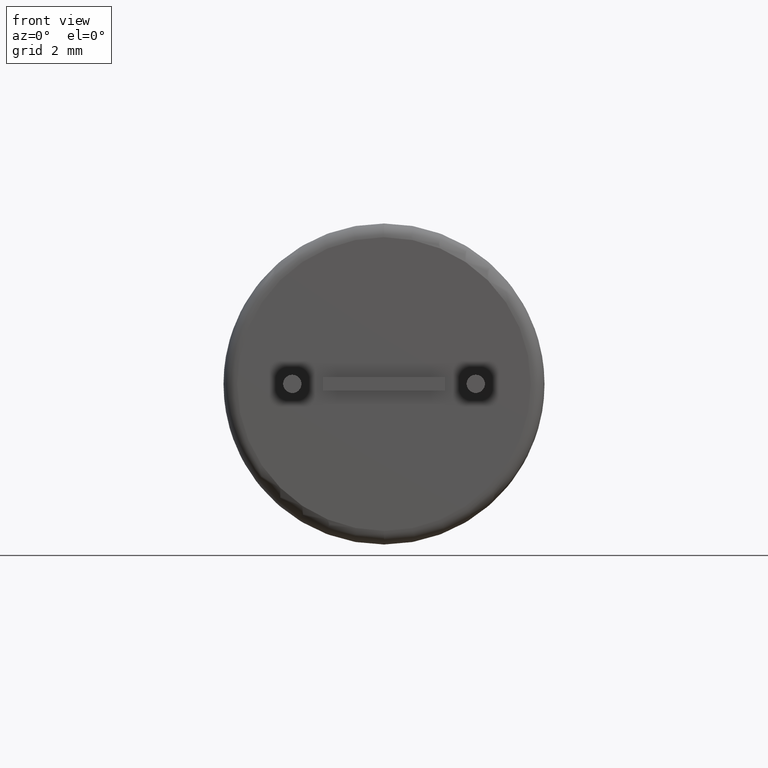
[diagram: clean part render]
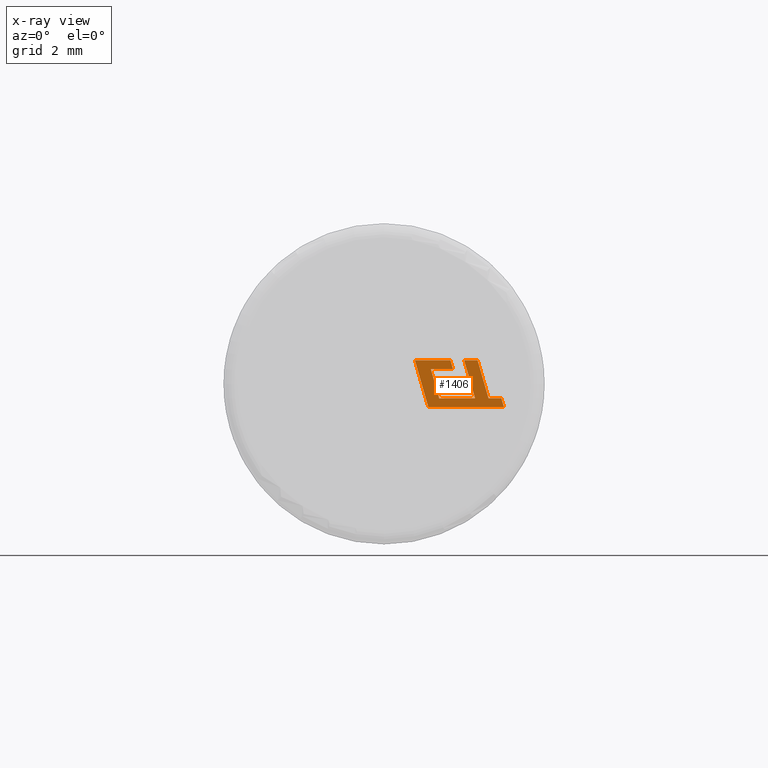
[diagram: x-ray — body ghosted, one internal face saturated and labeled with its STEP entity id]
A machine part, front view, then the same camera in x-ray: the body is ghosted and one INTERNAL B-rep face — a face not visible from any outside direction — is saturated and labeled: STEP entity #1406.
In plain terms, the highlighted planar face has unit normal (0, 1, 0).
Its self-contained STEP definition (entity closure, byte-faithful):
#45 = VERTEX_POINT ( 'NONE', #2183 ) ;
#59 = DIRECTION ( 'NONE',  ( 0.0000000000000000000, 1.000000000000000000, 0.0000000000000000000 ) ) ;
#82 = ORIENTED_EDGE ( 'NONE', *, *, #2175, .F. ) ;
#87 = VECTOR ( 'NONE', #1355, 1000.000000000000000 ) ;
#140 = DIRECTION ( 'NONE',  ( 0.2745159998572685400, 0.0000000000000000000, -0.9615825319869137900 ) ) ;
#150 = CARTESIAN_POINT ( 'NONE',  ( 1.020782921526899100, 7.764800000000000100, 0.3205885588268876400 ) ) ;
#153 = EDGE_CURVE ( 'NONE', #650, #704, #770, .T. ) ;
#160 = FACE_OUTER_BOUND ( 'NONE', #1983, .T. ) ;
#173 = EDGE_CURVE ( 'NONE', #1018, #268, #523, .T. ) ;
#198 = DIRECTION ( 'NONE',  ( 1.000000000000000000, 0.0000000000000000000, 0.0000000000000000000 ) ) ;
#210 = VECTOR ( 'NONE', #231, 1000.000000000000000 ) ;
#231 = DIRECTION ( 'NONE',  ( 1.000000000000000000, 0.0000000000000000000, 0.0000000000000000000 ) ) ;
#268 = VERTEX_POINT ( 'NONE', #2508 ) ;
#294 = CARTESIAN_POINT ( 'NONE',  ( 1.534013027644680600, 7.764800000000000100, 0.06552458732921501200 ) ) ;
#315 = VECTOR ( 'NONE', #630, 1000.000000000000100 ) ;
#331 = LINE ( 'NONE', #2719, #2924 ) ;
#347 = DIRECTION ( 'NONE',  ( 0.2729786930694320700, 0.0000000000000000000, -0.9620200793798977500 ) ) ;
#383 = EDGE_CURVE ( 'NONE', #2893, #650, #728, .T. ) ;
#384 = DIRECTION ( 'NONE',  ( -1.000000000000000000, 0.0000000000000000000, 2.141994324563337000E-016 ) ) ;
#394 = VERTEX_POINT ( 'NONE', #1745 ) ;
#444 = CARTESIAN_POINT ( 'NONE',  ( 2.559015337177406900, 7.764800000000000100, -0.3123021888325555600 ) ) ;
#523 = LINE ( 'NONE', #1351, #2670 ) ;
#540 = EDGE_CURVE ( 'NONE', #268, #1417, #2139, .T. ) ;
#567 = EDGE_CURVE ( 'NONE', #1573, #45, #2947, .T. ) ;
#630 = DIRECTION ( 'NONE',  ( 0.2793947940814905900, 0.0000000000000000000, -0.9601763114346038000 ) ) ;
#634 = LINE ( 'NONE', #294, #2157 ) ;
#641 = LINE ( 'NONE', #2380, #2869 ) ;
#650 = VERTEX_POINT ( 'NONE', #444 ) ;
#667 = DIRECTION ( 'NONE',  ( 0.9999960426590096500, 0.0000000000000000000, 0.002813301676022459200 ) ) ;
#677 = DIRECTION ( 'NONE',  ( -1.000000000000000000, 0.0000000000000000000, 3.132732591391179300E-016 ) ) ;
#678 = ORIENTED_EDGE ( 'NONE', *, *, #1905, .F. ) ;
#692 = DIRECTION ( 'NONE',  ( 0.2746918797667241000, 0.0000000000000000000, -0.9615323037684295700 ) ) ;
#704 = VERTEX_POINT ( 'NONE', #2054 ) ;
#708 = LINE ( 'NONE', #2235, #2468 ) ;
#728 = LINE ( 'NONE', #1211, #2599 ) ;
#734 = EDGE_CURVE ( 'NONE', #2605, #1528, #1814, .T. ) ;
#768 = CARTESIAN_POINT ( 'NONE',  ( 2.039940254781940100, 7.764800000000000100, 0.5159000000000316700 ) ) ;
#770 = LINE ( 'NONE', #2944, #1741 ) ;
#793 = DIRECTION ( 'NONE',  ( 0.9999891854650020400, 0.0000000000000000000, 0.004650693823677738000 ) ) ;
#799 = EDGE_CURVE ( 'NONE', #394, #1242, #1879, .T. ) ;
#852 = EDGE_CURVE ( 'NONE', #2286, #2584, #2870, .T. ) ;
#856 = CARTESIAN_POINT ( 'NONE',  ( 1.985680488135802800, 7.764800000000000100, -0.3123244985796048100 ) ) ;
#927 = ORIENTED_EDGE ( 'NONE', *, *, #2455, .F. ) ;
#1014 = EDGE_CURVE ( 'NONE', #704, #1573, #641, .T. ) ;
#1016 = CARTESIAN_POINT ( 'NONE',  ( 1.448519409359427100, 7.764800000000000100, 0.5159000000000316700 ) ) ;
#1018 = VERTEX_POINT ( 'NONE', #2657 ) ;
#1062 = CARTESIAN_POINT ( 'NONE',  ( 0.9682708532386388200, 7.764800000000000100, -0.5105040362432053900 ) ) ;
#1081 = CARTESIAN_POINT ( 'NONE',  ( 1.503940146510068400, 7.764800000000000100, 0.3205885588268875800 ) ) ;
#1093 = CARTESIAN_POINT ( 'NONE',  ( 2.277995384209543900, 7.764800000000000100, -0.3123244985770398100 ) ) ;
#1098 = DIRECTION ( 'NONE',  ( 0.2762033010290285700, 0.0000000000000000000, -0.9610992334304860900 ) ) ;
#1122 = CARTESIAN_POINT ( 'NONE',  ( 1.093599490915455600, 7.764800000000000100, 0.06552458732921517800 ) ) ;
#1167 = CARTESIAN_POINT ( 'NONE',  ( 0.9682708532386388200, 7.764800000000000100, -0.5105040362432053900 ) ) ;
#1173 = ORIENTED_EDGE ( 'NONE', *, *, #540, .F. ) ;
#1188 = VECTOR ( 'NONE', #384, 1000.000000000000000 ) ;
#1201 = CARTESIAN_POINT ( 'NONE',  ( -0.06910119385010503300, 7.764800000000000100, 0.05240583738103321600 ) ) ;
#1211 = CARTESIAN_POINT ( 'NONE',  ( 2.277995384209543900, 7.764800000000000100, -0.3123244985770398100 ) ) ;
#1215 = LINE ( 'NONE', #2892, #2180 ) ;
#1242 = VERTEX_POINT ( 'NONE', #2302 ) ;
#1262 = CARTESIAN_POINT ( 'NONE',  ( 0.6730410465249611100, 7.764800000000000100, 0.5159000000000316700 ) ) ;
#1333 = ORIENTED_EDGE ( 'NONE', *, *, #2914, .F. ) ;
#1346 = LINE ( 'NONE', #1016, #2296 ) ;
#1351 = CARTESIAN_POINT ( 'NONE',  ( 1.588210376521853200, 7.764800000000000100, -0.1241879799598679100 ) ) ;
#1355 = DIRECTION ( 'NONE',  ( 1.000000000000000000, 0.0000000000000000000, -2.447794202390573100E-016 ) ) ;
#1365 = AXIS2_PLACEMENT_3D ( 'NONE', #1201, #59, #2785 ) ;
#1398 = ORIENTED_EDGE ( 'NONE', *, *, #1716, .F. ) ;
#1406 = ADVANCED_FACE ( 'NONE', ( #160 ), #2121, .F. ) ;
#1417 = VERTEX_POINT ( 'NONE', #1656 ) ;
#1423 = LINE ( 'NONE', #1262, #210 ) ;
#1455 = DIRECTION ( 'NONE',  ( 0.2762437428917126100, 0.0000000000000000000, -0.9610876102172877200 ) ) ;
#1461 = ORIENTED_EDGE ( 'NONE', *, *, #2496, .F. ) ;
#1470 = ORIENTED_EDGE ( 'NONE', *, *, #734, .F. ) ;
#1528 = VERTEX_POINT ( 'NONE', #2261 ) ;
#1573 = VERTEX_POINT ( 'NONE', #1167 ) ;
#1576 = VERTEX_POINT ( 'NONE', #2621 ) ;
#1656 = CARTESIAN_POINT ( 'NONE',  ( 1.203286236489359700, 7.764800000000000100, -0.3150989684148586800 ) ) ;
#1714 = ORIENTED_EDGE ( 'NONE', *, *, #383, .F. ) ;
#1716 = EDGE_CURVE ( 'NONE', #2584, #1018, #634, .T. ) ;
#1722 = LINE ( 'NONE', #768, #2510 ) ;
#1741 = VECTOR ( 'NONE', #1098, 1000.000000000000100 ) ;
#1745 = CARTESIAN_POINT ( 'NONE',  ( 1.503940146510068400, 7.764800000000000100, 0.3205885588268875800 ) ) ;
#1762 = VERTEX_POINT ( 'NONE', #2539 ) ;
#1814 = LINE ( 'NONE', #856, #1943 ) ;
#1879 = LINE ( 'NONE', #1081, #1188 ) ;
#1886 = EDGE_CURVE ( 'NONE', #1576, #2893, #1722, .T. ) ;
#1905 = EDGE_CURVE ( 'NONE', #1762, #2605, #1215, .T. ) ;
#1914 = CARTESIAN_POINT ( 'NONE',  ( 1.448519409359427100, 7.764800000000000100, 0.5159000000000316700 ) ) ;
#1943 = VECTOR ( 'NONE', #2217, 1000.000000000000000 ) ;
#1983 = EDGE_LOOP ( 'NONE', ( #82, #1173, #2003, #1398, #2383, #1333, #2102, #2477, #1461, #2772, #2297, #2839, #1714, #2683, #927, #1470, #678 ) ) ;
#2003 = ORIENTED_EDGE ( 'NONE', *, *, #173, .F. ) ;
#2013 = EDGE_CURVE ( 'NONE', #2737, #394, #1346, .T. ) ;
#2033 = CARTESIAN_POINT ( 'NONE',  ( 1.093599490915455600, 7.764800000000000100, 0.06552458732921517800 ) ) ;
#2047 = LINE ( 'NONE', #150, #2736 ) ;
#2054 = CARTESIAN_POINT ( 'NONE',  ( 2.615975120954857800, 7.764800000000000100, -0.5105040362432056200 ) ) ;
#2102 = ORIENTED_EDGE ( 'NONE', *, *, #799, .F. ) ;
#2121 = PLANE ( 'NONE',  #1365 ) ;
#2139 = LINE ( 'NONE', #2899, #315 ) ;
#2157 = VECTOR ( 'NONE', #692, 1000.000000000000200 ) ;
#2175 = EDGE_CURVE ( 'NONE', #1417, #1762, #708, .T. ) ;
#2180 = VECTOR ( 'NONE', #793, 1000.000000000000200 ) ;
#2183 = CARTESIAN_POINT ( 'NONE',  ( 0.6730410465249611100, 7.764800000000000100, 0.5159000000000316700 ) ) ;
#2217 = DIRECTION ( 'NONE',  ( -0.2763173343569531000, 0.0000000000000000000, 0.9610664548999032800 ) ) ;
#2235 = CARTESIAN_POINT ( 'NONE',  ( 1.203286236489359700, 7.764800000000000100, -0.3150989684148586800 ) ) ;
#2261 = CARTESIAN_POINT ( 'NONE',  ( 1.747556699161725100, 7.764800000000000100, 0.5159000000000316700 ) ) ;
#2286 = VERTEX_POINT ( 'NONE', #1122 ) ;
#2296 = VECTOR ( 'NONE', #347, 1000.000000000000100 ) ;
#2297 = ORIENTED_EDGE ( 'NONE', *, *, #1014, .F. ) ;
#2302 = CARTESIAN_POINT ( 'NONE',  ( 1.020782921526899100, 7.764800000000000100, 0.3205885588268876400 ) ) ;
#2380 = CARTESIAN_POINT ( 'NONE',  ( 1.730229527294165700, 7.764800000000000100, -0.5105040362432056200 ) ) ;
#2383 = ORIENTED_EDGE ( 'NONE', *, *, #852, .F. ) ;
#2447 = VECTOR ( 'NONE', #2708, 1000.000000000000100 ) ;
#2455 = EDGE_CURVE ( 'NONE', #1528, #1576, #331, .T. ) ;
#2468 = VECTOR ( 'NONE', #667, 999.9999999999998900 ) ;
#2477 = ORIENTED_EDGE ( 'NONE', *, *, #2013, .F. ) ;
#2496 = EDGE_CURVE ( 'NONE', #45, #2737, #1423, .T. ) ;
#2508 = CARTESIAN_POINT ( 'NONE',  ( 1.147734422023554600, 7.764800000000000100, -0.1241879799598678000 ) ) ;
#2510 = VECTOR ( 'NONE', #1455, 1000.000000000000100 ) ;
#2539 = CARTESIAN_POINT ( 'NONE',  ( 1.673641577038208000, 7.764800000000000100, -0.3137757117103885900 ) ) ;
#2584 = VERTEX_POINT ( 'NONE', #2818 ) ;
#2599 = VECTOR ( 'NONE', #2819, 1000.000000000000100 ) ;
#2605 = VERTEX_POINT ( 'NONE', #2677 ) ;
#2610 = DIRECTION ( 'NONE',  ( -1.000000000000000000, 0.0000000000000000000, 9.054909572959333200E-017 ) ) ;
#2621 = CARTESIAN_POINT ( 'NONE',  ( 2.039940254781940100, 7.764800000000000100, 0.5159000000000316700 ) ) ;
#2657 = CARTESIAN_POINT ( 'NONE',  ( 1.588210376521853200, 7.764800000000000100, -0.1241879799598679100 ) ) ;
#2670 = VECTOR ( 'NONE', #677, 1000.000000000000000 ) ;
#2677 = CARTESIAN_POINT ( 'NONE',  ( 1.985680488135802800, 7.764800000000000100, -0.3123244985796048100 ) ) ;
#2683 = ORIENTED_EDGE ( 'NONE', *, *, #1886, .F. ) ;
#2708 = DIRECTION ( 'NONE',  ( -0.2764273280489770200, 0.0000000000000000000, 0.9610348236706634000 ) ) ;
#2719 = CARTESIAN_POINT ( 'NONE',  ( 1.747556699161725100, 7.764800000000000100, 0.5159000000000316700 ) ) ;
#2736 = VECTOR ( 'NONE', #140, 1000.000000000000100 ) ;
#2737 = VERTEX_POINT ( 'NONE', #1914 ) ;
#2772 = ORIENTED_EDGE ( 'NONE', *, *, #567, .F. ) ;
#2785 = DIRECTION ( 'NONE',  ( 0.0000000000000000000, 0.0000000000000000000, 1.000000000000000000 ) ) ;
#2818 = CARTESIAN_POINT ( 'NONE',  ( 1.534013027644680600, 7.764800000000000100, 0.06552458732921501200 ) ) ;
#2819 = DIRECTION ( 'NONE',  ( 0.9999999968487352000, 0.0000000000000000000, 7.938847109690776000E-005 ) ) ;
#2839 = ORIENTED_EDGE ( 'NONE', *, *, #153, .F. ) ;
#2869 = VECTOR ( 'NONE', #2610, 1000.000000000000000 ) ;
#2870 = LINE ( 'NONE', #2033, #87 ) ;
#2892 = CARTESIAN_POINT ( 'NONE',  ( 1.673641577038208000, 7.764800000000000100, -0.3137757117103885900 ) ) ;
#2893 = VERTEX_POINT ( 'NONE', #1093 ) ;
#2899 = CARTESIAN_POINT ( 'NONE',  ( 1.147734422023554600, 7.764800000000000100, -0.1241879799598678000 ) ) ;
#2914 = EDGE_CURVE ( 'NONE', #1242, #2286, #2047, .T. ) ;
#2924 = VECTOR ( 'NONE', #198, 1000.000000000000000 ) ;
#2944 = CARTESIAN_POINT ( 'NONE',  ( 2.559015337177406900, 7.764800000000000100, -0.3123021888325555600 ) ) ;
#2947 = LINE ( 'NONE', #1062, #2447 ) ;